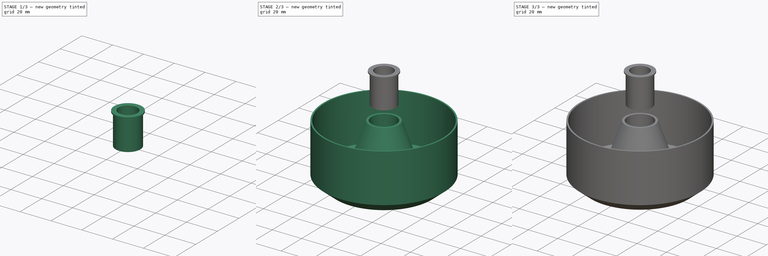
[diagram: build sequence overview — one tinted view per stage of 3, left to right]
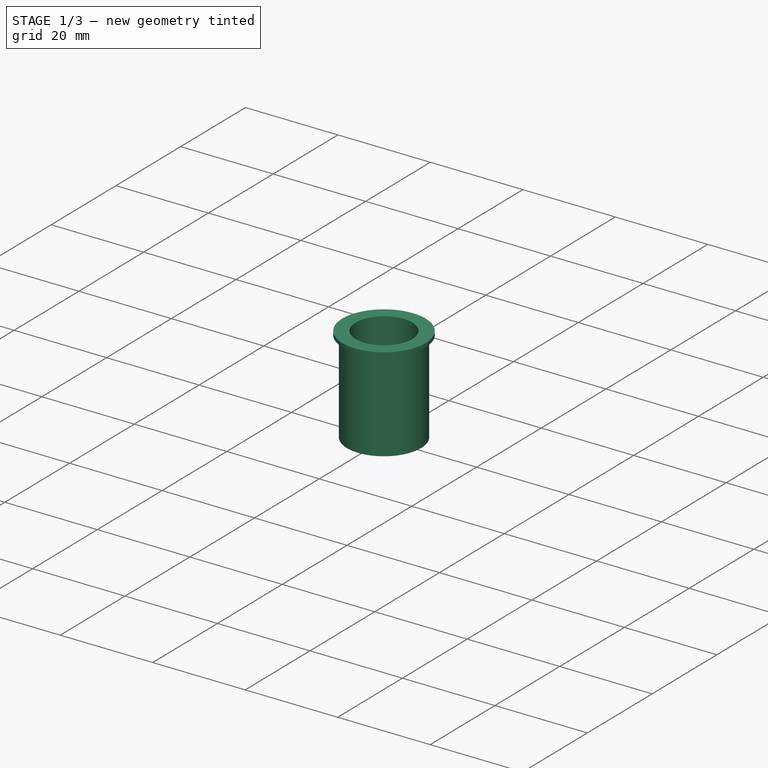
[diagram: stage 1 of 3 — iso view after this stage's code; geometry added in this stage tinted green]
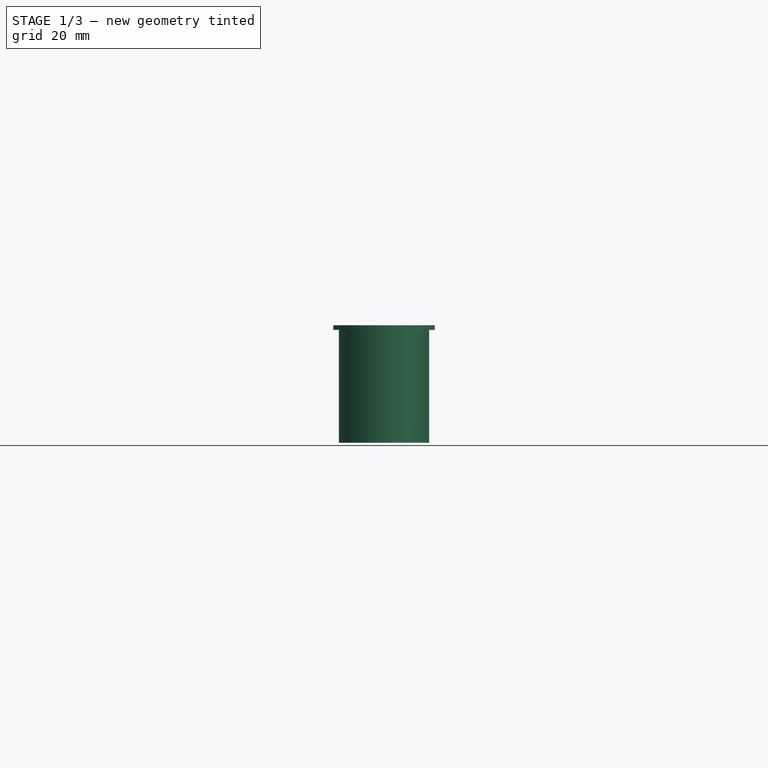
[diagram: stage 1 of 3 — front view after this stage's code; geometry added in this stage tinted green]
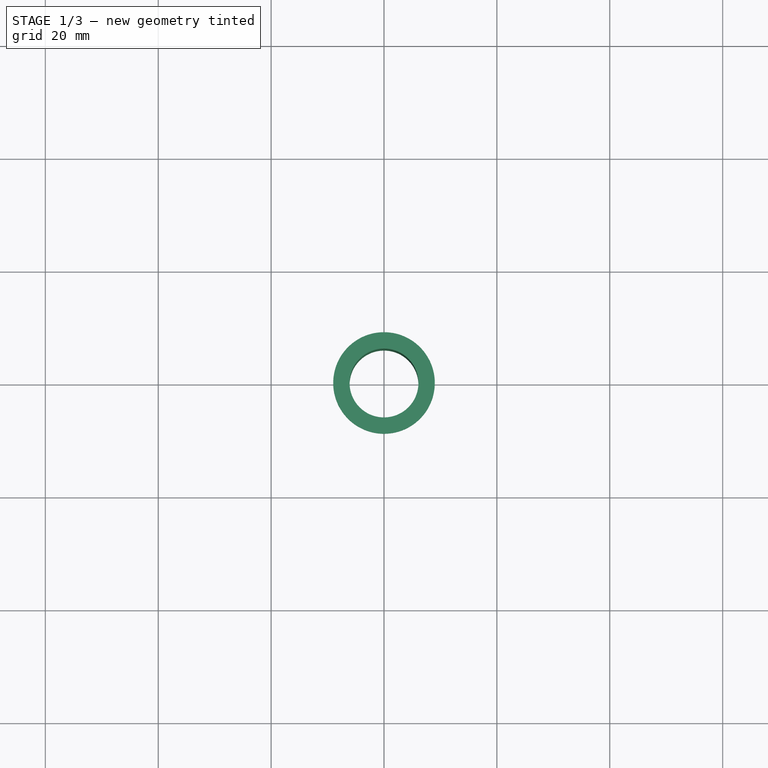
[diagram: stage 1 of 3 — top view after this stage's code; geometry added in this stage tinted green]
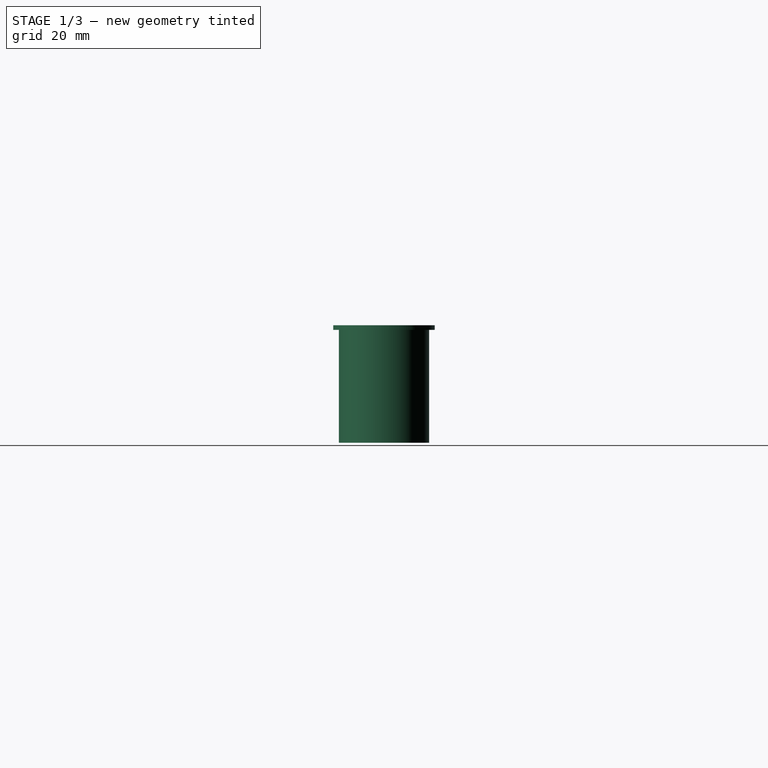
[diagram: stage 1 of 3 — right view after this stage's code; geometry added in this stage tinted green]
FCSTD DOCUMENT  (FreeCAD 0.19R)
Label: bowl_1
License: All rights reserved
LicenseURL: http://en.wikipedia.org/wiki/All_rights_reserved
objects: Sketcher::SketchObject×4, PartDesign::Revolution×2, PartDesign::Pocket×2, PartDesign::Chamfer×2, PartDesign::Body×2
note: 18 computed .brp shape members not serialized (recipe doc carries the construction recipe); baked Part::Feature solids carry a one-line shape summary decoded from their .brp

FEATURE [PartDesign::Body] Body  label="miska"
  Group = -> [Sketch,Revolution,Sketch001,Pocket,Chamfer,Chamfer001]
  Origin = -> Origin
  Tip = -> Chamfer001
FEATURE [Sketcher::SketchObject] Sketch002
  FullyConstrained = false
  MapMode = 5
  Placement = pos=(0,0,0) rot=(1,0,0;1.5708rad)
  Support = -> [XZ_Plane001]
  sketch-geometry (6):
    g0: LineSegment StartX=0 StartY=29.8709 StartZ=0 EndX=8 EndY=29.8709 EndZ=0
    g1: LineSegment StartX=8 StartY=29.8709 StartZ=0 EndX=8 EndY=49.8709 EndZ=0
    g2: LineSegment StartX=8 StartY=49.8709 StartZ=0 EndX=9 EndY=49.8709 EndZ=0
    g3: LineSegment StartX=9 StartY=49.8709 StartZ=0 EndX=9 EndY=50.6709 EndZ=0
    g4: LineSegment StartX=9 StartY=50.6709 StartZ=0 EndX=0 EndY=50.6709 EndZ=0
    g5: LineSegment StartX=0 StartY=50.6709 StartZ=0 EndX=0 EndY=29.8709 EndZ=0
  constraints (17):
    c: PointOnObject(g0,g-2)
    c: Horizontal(g0)
    c: Coincident(g1,g0)
    c: Vertical(g1)
    c: DistanceX(g0,g0) = 8
    c: DistanceY(g0,g1) = 20
    c: Coincident(g2,g1)
    c: Horizontal(g2)
    c: PointOnObject(g4,g-2)
    c: Horizontal(g4)
    c: DistanceX(g1,g3) = 1
    c: Parallel(g3,g-2)
    c: Coincident(g3,g2)
    c: Coincident(g4,g3)
    c: DistanceY(g2,g3) = 0.8
    c: Coincident(g5,g4)
    c: Coincident(g5,g0)
FEATURE [PartDesign::Revolution] Revolution001
  Angle = 360
  Axis = (0,2e-16,1)
  Base = (0,0,0)
  Placement = pos=(0,0,0) rot=(1,0,0;1.5708rad)
  Profile = -> Sketch002
  ReferenceAxis = -> Sketch002 [V_Axis]
  Reversed = true
FEATURE [Sketcher::SketchObject] Sketch003
  FullyConstrained = true
  MapMode = 5
  Placement = pos=(0,3.38e-14,50.6709) rot=(0,0,1;3.14159rad)
  Support = -> [Revolution001]
  sketch-geometry (1):
    g0: Circle CenterX=0 CenterY=0 CenterZ=0 NormalX=0 NormalY=0 NormalZ=1 AngleXU=0 Radius=6.1
  constraints (2):
    c: Coincident(g0,g-1)
    c: Diameter(g0) = 12.2
FEATURE [PartDesign::Pocket] Pocket001
  BaseFeature = -> Revolution001
  Length = 5
  Length2 = 100
  Placement = pos=(0,0,0) rot=(1,0,0;1.5708rad)
  Profile = -> Sketch003
  Type = 1
FEATURE [PartDesign::Body] Body001  label="podložka"
  Group = -> [Sketch002,Revolution001,Sketch003,Pocket001]
  Origin = -> Origin001
  Tip = -> Pocket001
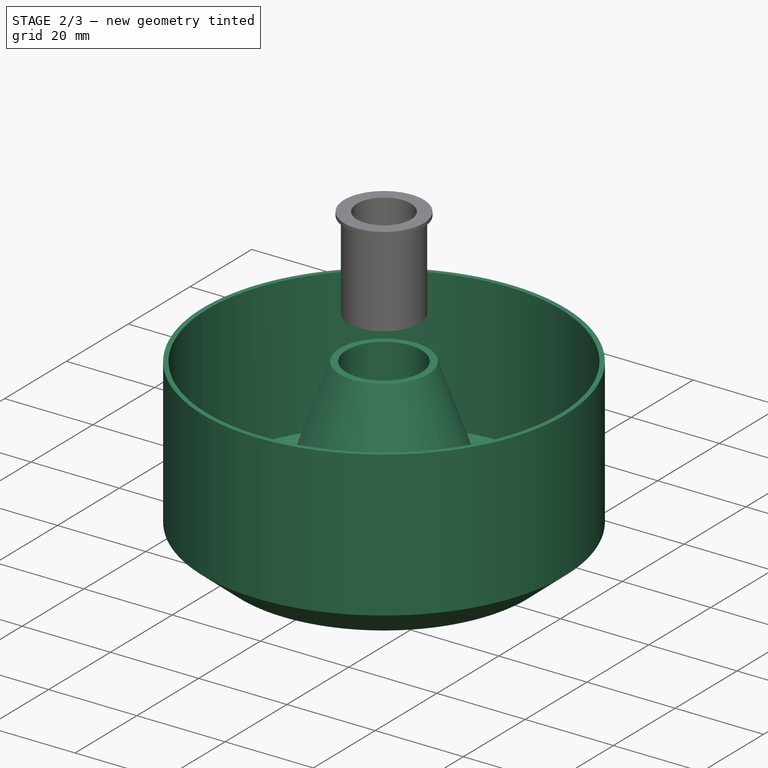
[diagram: stage 2 of 3 — iso view after this stage's code; geometry added in this stage tinted green]
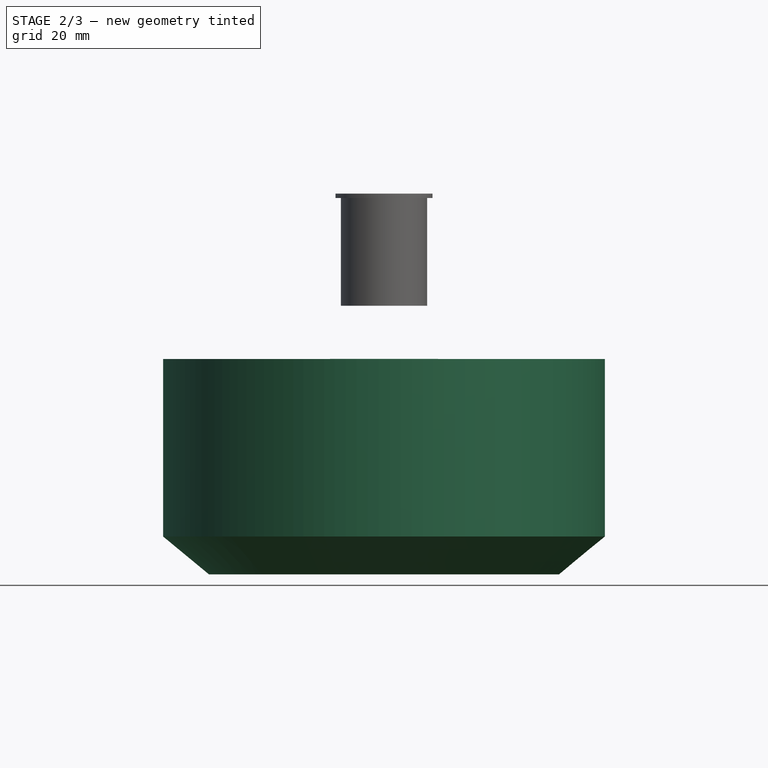
[diagram: stage 2 of 3 — front view after this stage's code; geometry added in this stage tinted green]
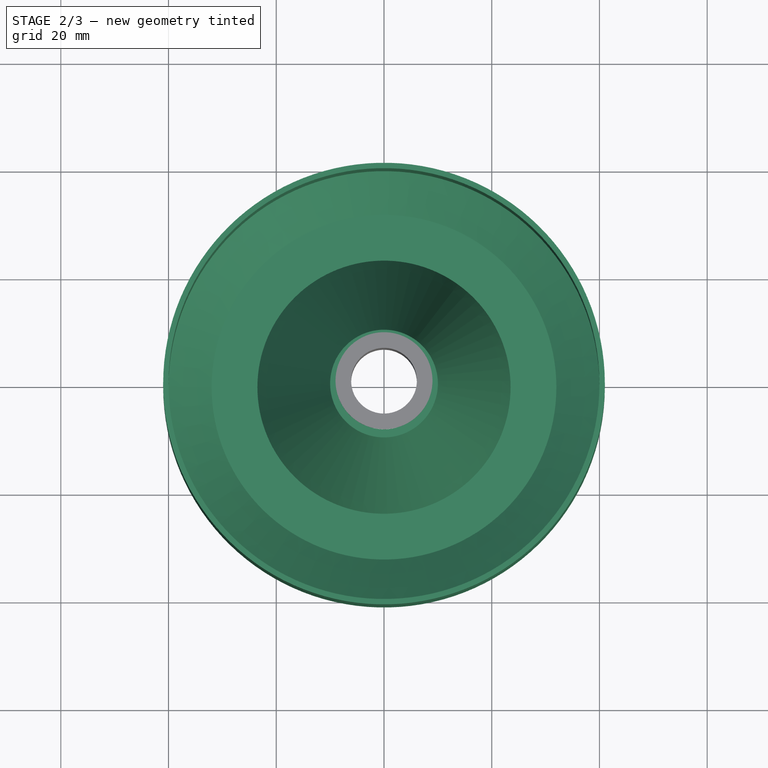
[diagram: stage 2 of 3 — top view after this stage's code; geometry added in this stage tinted green]
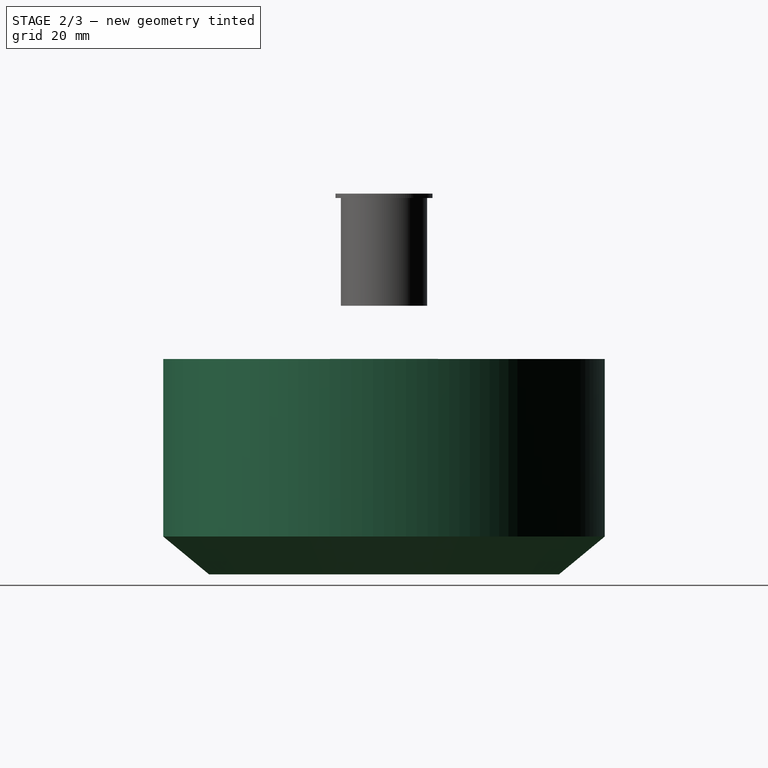
[diagram: stage 2 of 3 — right view after this stage's code; geometry added in this stage tinted green]
FEATURE [Sketcher::SketchObject] Sketch
  FullyConstrained = false
  MapMode = 5
  Placement = pos=(0,0,0) rot=(1,0,0;1.5708rad)
  Support = -> [XZ_Plane]
  sketch-geometry (12):
    g0: LineSegment StartX=0 StartY=0 StartZ=0 EndX=-15.5 EndY=0 EndZ=0
    g1: LineSegment StartX=-15.5 StartY=0 StartZ=0 EndX=-22.5 EndY=-20 EndZ=0
    g2: LineSegment StartX=-22.5 StartY=-20 StartZ=0 EndX=-32.5 EndY=-20 EndZ=0
    g3: LineSegment StartX=-32.5 StartY=-20 StartZ=0 EndX=-41 EndY=-12.9808 EndZ=0
    g4: LineSegment StartX=-40 StartY=-11.9651 StartZ=0 EndX=-32 EndY=-18.5714 EndZ=0
    g5: LineSegment StartX=-32 StartY=-18.5714 StartZ=0 EndX=-23.5 EndY=-18.5714 EndZ=0
    g6: LineSegment StartX=-23.5 StartY=-18.5714 StartZ=0 EndX=-10 EndY=20 EndZ=0
    g7: LineSegment StartX=-10 StartY=20 StartZ=0 EndX=0 EndY=20 EndZ=0
    g8: LineSegment StartX=0 StartY=20 StartZ=0 EndX=0 EndY=0 EndZ=0
    g9: LineSegment StartX=-41 StartY=-12.9808 StartZ=0 EndX=-41 EndY=19.9839 EndZ=0
    g10: LineSegment StartX=-40 StartY=-11.9651 StartZ=0 EndX=-40 EndY=19.9839 EndZ=0
    g11: LineSegment StartX=-41 StartY=19.9839 StartZ=0 EndX=-40 EndY=19.9839 EndZ=0
  constraints (33):
    c: Coincident(g0,g-1)
    c: PointOnObject(g0,g-1)
    c: Coincident(g1,g0)
    c: Coincident(g2,g1)
    c: Horizontal(g2)
    c: Coincident(g3,g2)
    c: Coincident(g5,g4)
    c: Coincident(g6,g5)
    c: Horizontal(g7)
    c: Coincident(g8,g0)
    c: Vertical(g8)
    c: DistanceX(g0,g0) = 15.5
    c: DistanceX(g1,g0) = 22.5
    c: DistanceY(g1,g0) = 20
    c: DistanceY(g0,g8) = 20
    c: DistanceX(g2,g1) = 10
    c: Coincident(g7,g8)
    c: DistanceX(g7,g7) = 10
    c: Parallel(g1,g6)
    c: Parallel(g5,g2)
    c: Coincident(g7,g6)
    c: DistanceX(g5,g1) = 1
    c: DistanceX(g2,g4) = 0.5
    c: Parallel(g4,g3)
    c: DistanceX(g3,g4) = 1
    c: Coincident(g9,g3)
    c: Coincident(g10,g4)
    c: Parallel(g10,g9)
    c: DistanceX(g10,g7) = 40
    c: Coincident(g11,g9)
    c: Coincident(g11,g10)
    c: Parallel(g11,g-1)
    c: Parallel(g10,g-2)
FEATURE [PartDesign::Revolution] Revolution
  Angle = 360
  Axis = (0,2e-16,1)
  Base = (0,0,0)
  Placement = pos=(0,0,0) rot=(1,0,0;1.5708rad)
  Profile = -> Sketch
  ReferenceAxis = -> Sketch [V_Axis]
FEATURE [Sketcher::SketchObject] Sketch001
  FullyConstrained = true
  MapMode = 5
  Placement = pos=(0,1.32e-14,20) rot=(0,0,1;3.14159rad)
  Support = -> [Revolution]
  sketch-geometry (1):
    g0: Circle CenterX=0 CenterY=0 CenterZ=0 NormalX=0 NormalY=0 NormalZ=1 AngleXU=0 Radius=8.5
  constraints (2):
    c: Coincident(g0,g-1)
    c: Diameter(g0) = 17
FEATURE [PartDesign::Pocket] Pocket
  BaseFeature = -> Revolution
  Length = 4
  Length2 = 100
  Placement = pos=(0,0,0) rot=(1,0,0;1.5708rad)
  Profile = -> Sketch001
  Type = 1
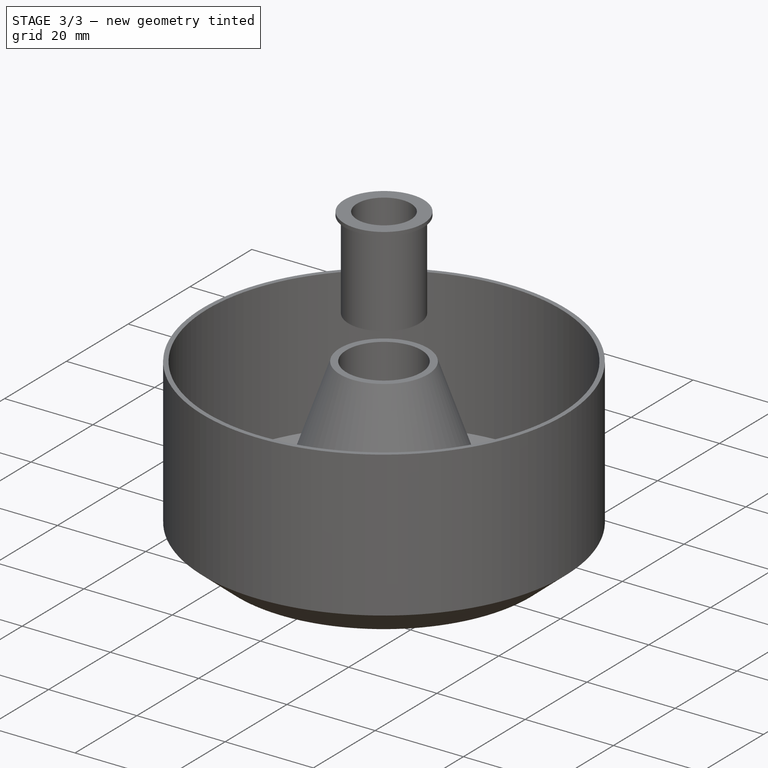
[diagram: stage 3 of 3 — iso view after this stage's code; geometry added in this stage tinted green]
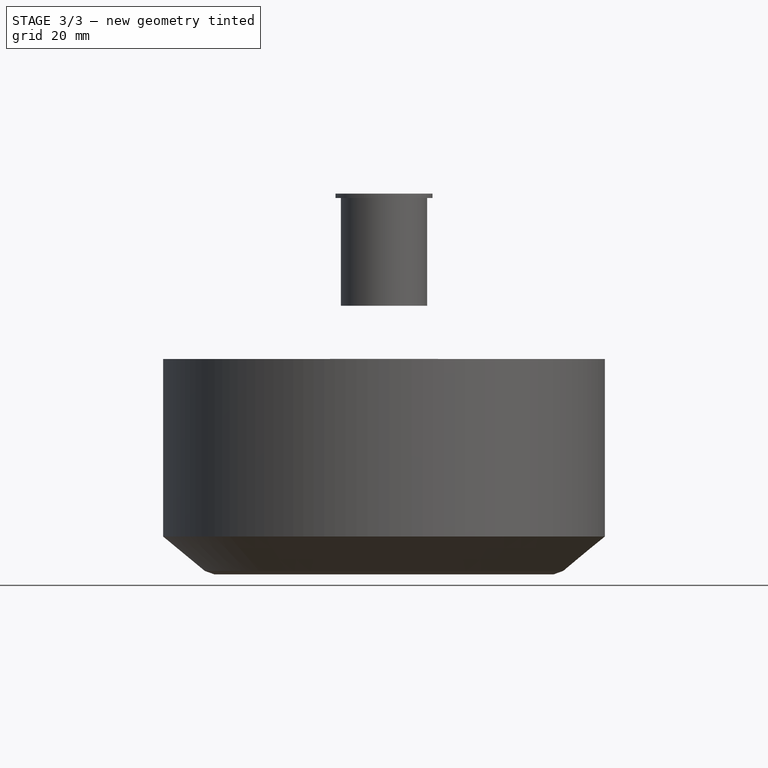
[diagram: stage 3 of 3 — front view after this stage's code; geometry added in this stage tinted green]
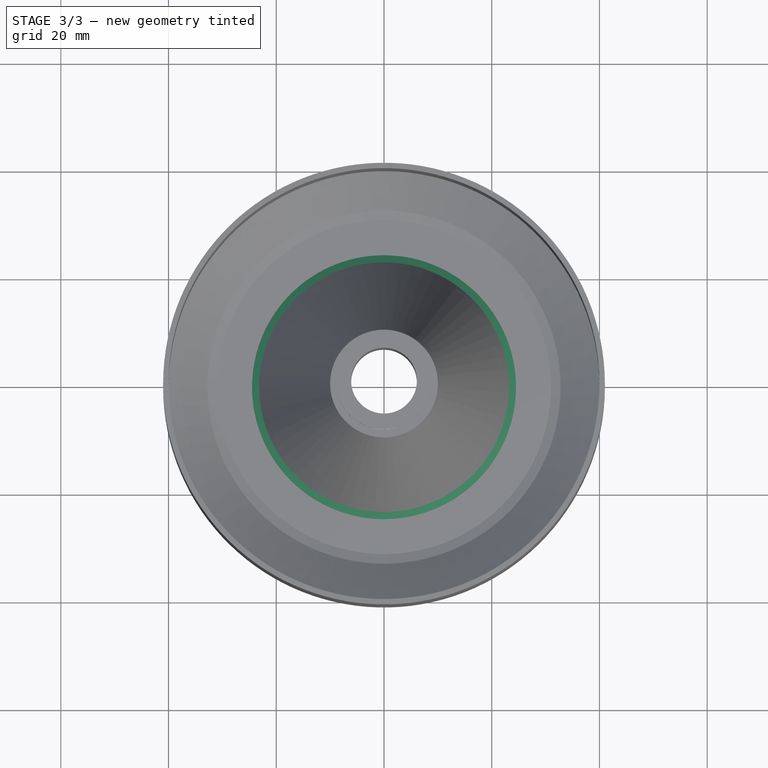
[diagram: stage 3 of 3 — top view after this stage's code; geometry added in this stage tinted green]
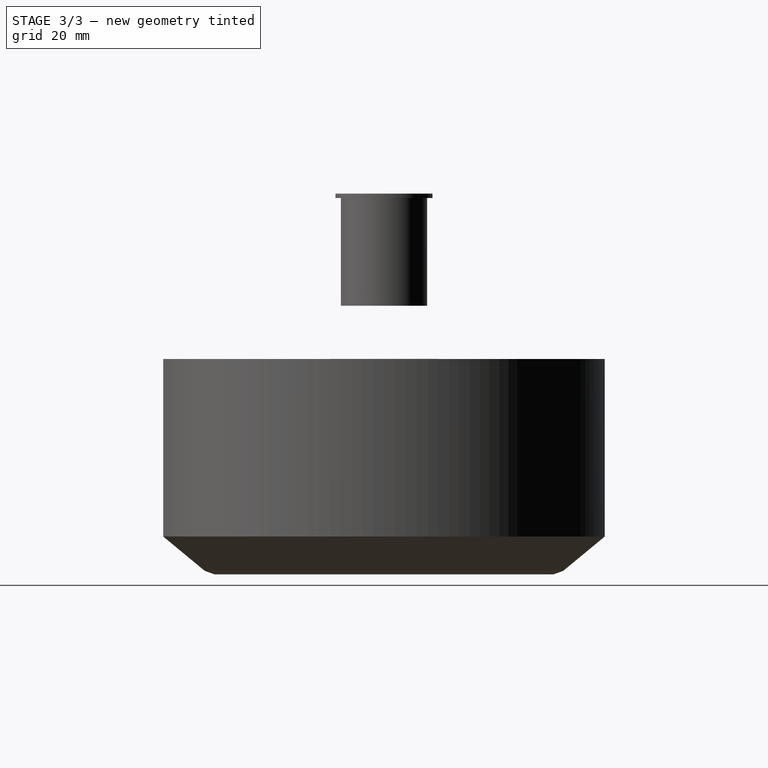
[diagram: stage 3 of 3 — right view after this stage's code; geometry added in this stage tinted green]
FEATURE [PartDesign::Chamfer] Chamfer
  Angle = 45
  Base = -> Pocket [Face10]
  BaseFeature = -> Pocket
  ChamferType = 0
  FlipDirection = false
  Placement = pos=(0,0,0) rot=(1,0,0;1.5708rad)
  Size = 1
  Size2 = 1
  SupportTransform = false
FEATURE [PartDesign::Chamfer] Chamfer001
  Angle = 45
  Base = -> Chamfer [Face11]
  BaseFeature = -> Chamfer
  ChamferType = 0
  FlipDirection = false
  Placement = pos=(0,0,0) rot=(1,0,0;1.5708rad)
  Size = 1
  Size2 = 1
  SupportTransform = false
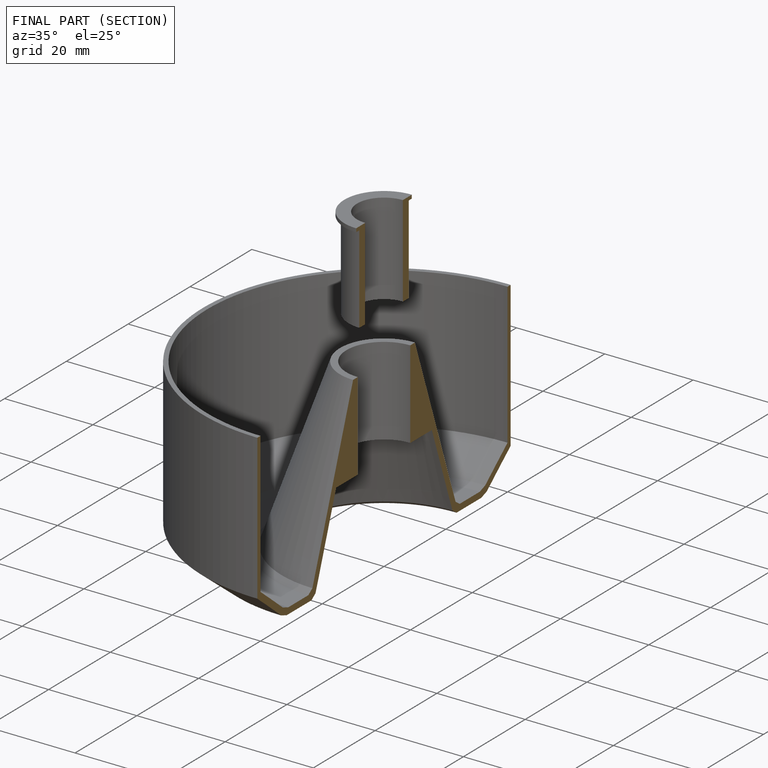
[diagram: finished part — half-section view (interior)]
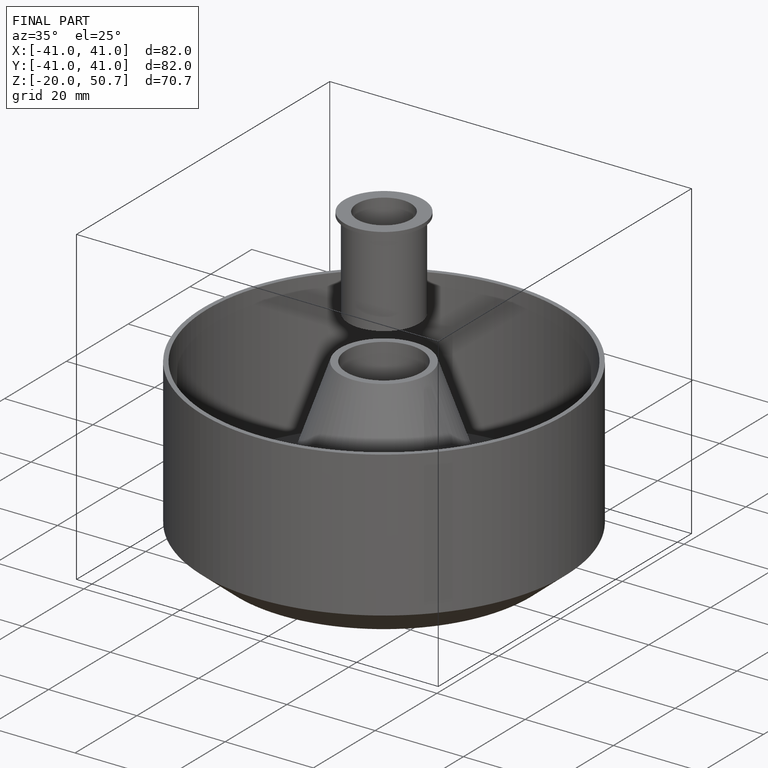
[diagram: finished part — iso view with bounding-box wireframe]
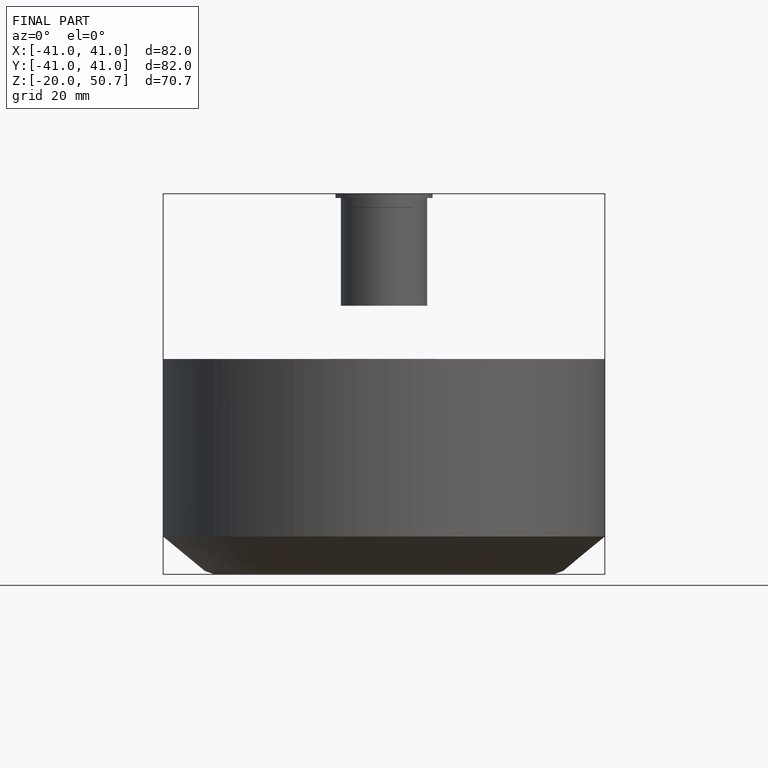
[diagram: finished part — front view with bounding-box wireframe]
